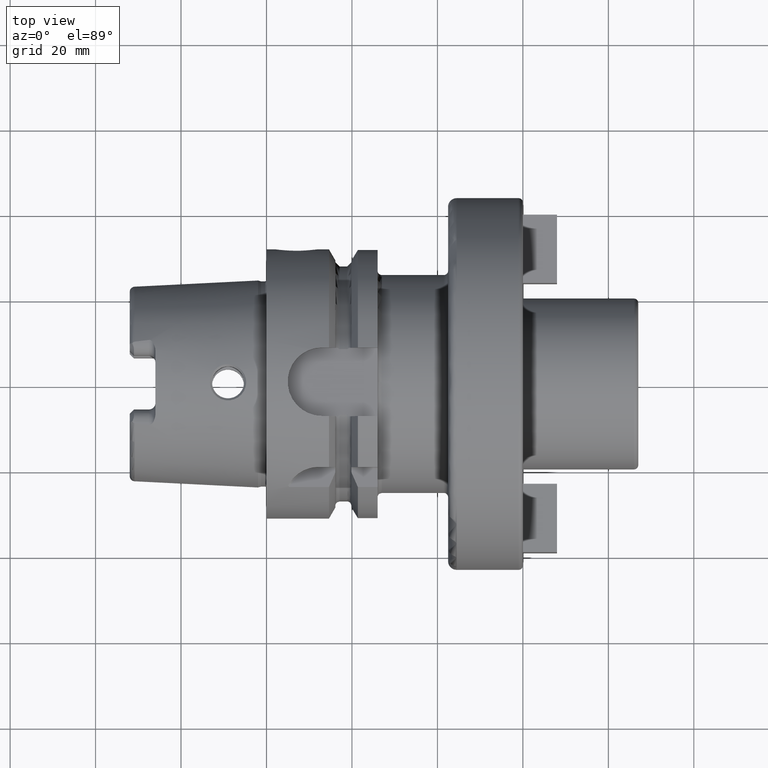
[diagram: clean part render]
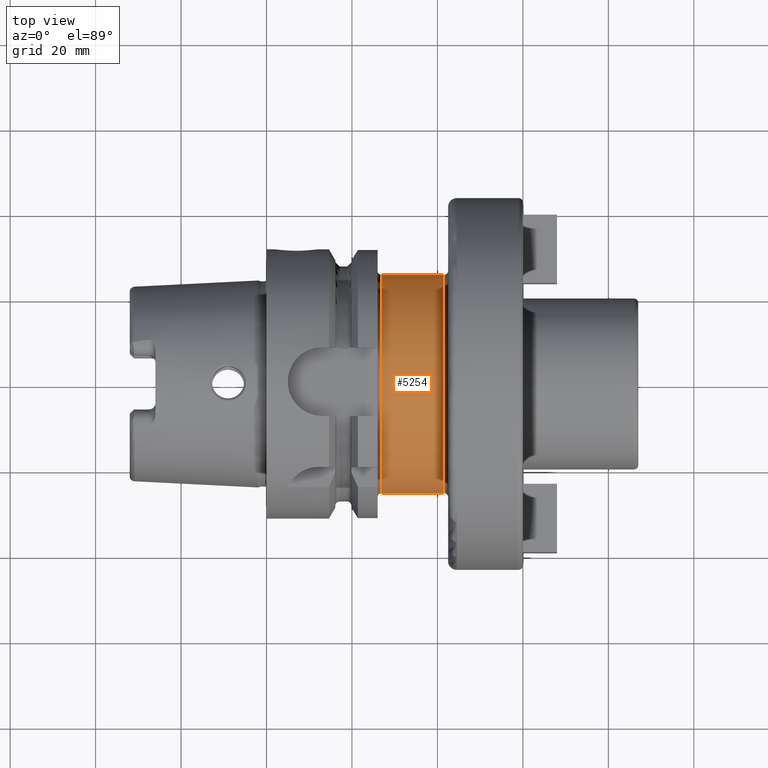
[diagram: same view with one face highlighted and labeled with its STEP entity id]
A machine part, top view. The second image highlights one B-rep face of the part: STEP entity #5254.
In plain terms, the highlighted cylindrical surface (partial cylindrical patch) has radius 25.5 mm, axis along (1, 0, 0).
Its self-contained STEP definition (entity closure, byte-faithful):
#1468=DIRECTION('',(1.E0,0.E0,5.397610040917E-14));
#1469=VECTOR('',#1468,1.45E1);
#1470=CARTESIAN_POINT('',(2.7E1,2.55E1,-1.893917313962E-13));
#1471=LINE('',#1470,#1469);
#1472=DIRECTION('',(1.E0,0.E0,-4.900629112049E-14));
#1473=VECTOR('',#1472,1.45E1);
#1474=CARTESIAN_POINT('',(2.7E1,-2.55E1,1.221935745667E-13));
#1475=LINE('',#1474,#1473);
#1546=CARTESIAN_POINT('',(4.15E1,0.E0,0.E0));
#1547=DIRECTION('',(-1.E0,0.E0,0.E0));
#1548=DIRECTION('',(0.E0,-1.E0,0.E0));
#1549=AXIS2_PLACEMENT_3D('',#1546,#1547,#1548);
#1551=CARTESIAN_POINT('',(2.7E1,0.E0,0.E0));
#1552=DIRECTION('',(-1.E0,0.E0,0.E0));
#1553=DIRECTION('',(0.E0,-1.E0,0.E0));
#1554=AXIS2_PLACEMENT_3D('',#1551,#1552,#1553);
#1556=CARTESIAN_POINT('',(2.7E1,0.E0,0.E0));
#1557=DIRECTION('',(-1.E0,0.E0,0.E0));
#1558=DIRECTION('',(0.E0,-2.840977287368E-7,1.E0));
#1559=AXIS2_PLACEMENT_3D('',#1556,#1557,#1558);
#3461=CARTESIAN_POINT('',(4.15E1,2.55E1,0.E0));
#3462=CARTESIAN_POINT('',(4.15E1,-2.55E1,0.E0));
#3463=VERTEX_POINT('',#3461);
#3464=VERTEX_POINT('',#3462);
#3465=CARTESIAN_POINT('',(2.7E1,2.55E1,-1.893917313962E-13));
#3466=VERTEX_POINT('',#3465);
#3467=CARTESIAN_POINT('',(2.7E1,-2.55E1,1.221935745667E-13));
#3468=VERTEX_POINT('',#3467);
#3478=CARTESIAN_POINT('',(2.7E1,-5.753011012223E-6,2.55E1));
#3479=VERTEX_POINT('',#3478);
#5242=CARTESIAN_POINT('',(2.5175E1,0.E0,0.E0));
#5243=DIRECTION('',(1.E0,0.E0,0.E0));
#5244=DIRECTION('',(0.E0,-1.E0,0.E0));
#5245=AXIS2_PLACEMENT_3D('',#5242,#5243,#5244);
#5246=CYLINDRICAL_SURFACE('',#5245,2.55E1);
#5247=ORIENTED_EDGE('',*,*,#5236,.F.);
#5248=ORIENTED_EDGE('',*,*,#5168,.F.);
#5249=ORIENTED_EDGE('',*,*,#5153,.T.);
#5250=ORIENTED_EDGE('',*,*,#5135,.T.);
#5251=ORIENTED_EDGE('',*,*,#5165,.T.);
#5252=EDGE_LOOP('',(#5247,#5248,#5249,#5250,#5251));
#5253=FACE_OUTER_BOUND('',#5252,.F.);
#5254=ADVANCED_FACE('',(#5253),#5246,.T.);
#1550=CIRCLE('',#1549,2.55E1);
#1555=CIRCLE('',#1554,2.55E1);
#1560=CIRCLE('',#1559,2.55E1);
#5135=EDGE_CURVE('',#3479,#3466,#1560,.T.);
#5153=EDGE_CURVE('',#3468,#3479,#1555,.T.);
#5165=EDGE_CURVE('',#3466,#3463,#1471,.T.);
#5168=EDGE_CURVE('',#3468,#3464,#1475,.T.);
#5236=EDGE_CURVE('',#3464,#3463,#1550,.T.);